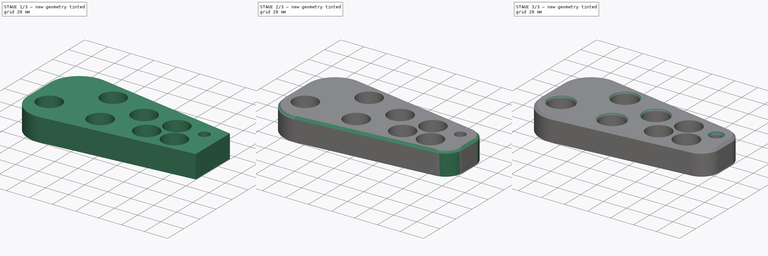
[diagram: build sequence overview — one tinted view per stage of 3, left to right]
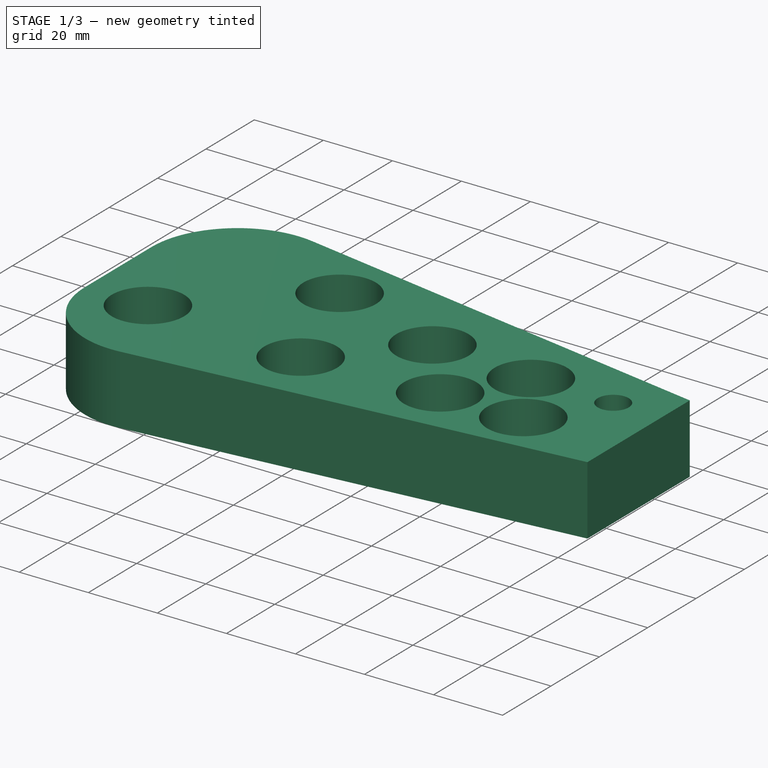
[diagram: stage 1 of 3 — iso view after this stage's code; geometry added in this stage tinted green]
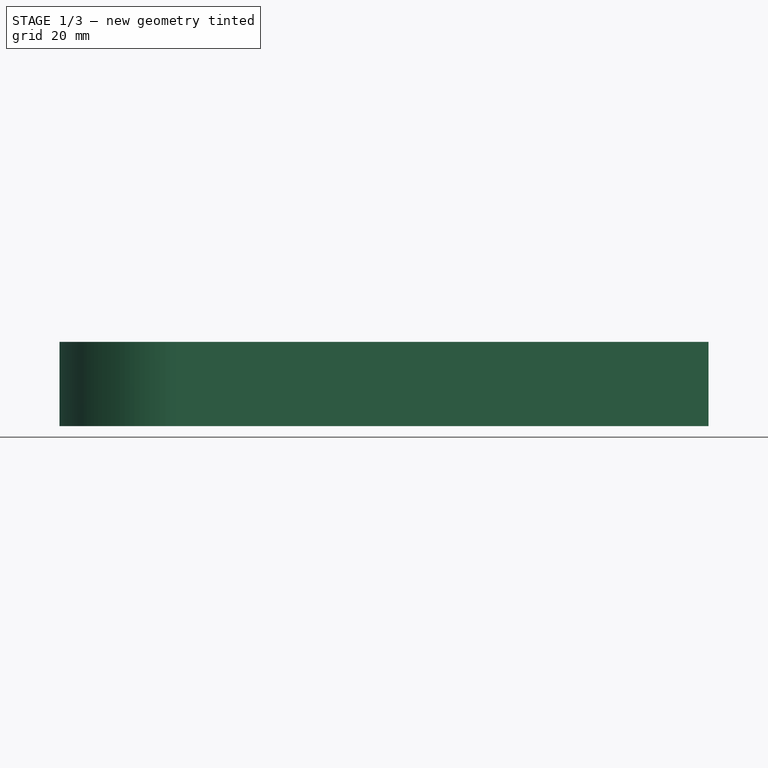
[diagram: stage 1 of 3 — front view after this stage's code; geometry added in this stage tinted green]
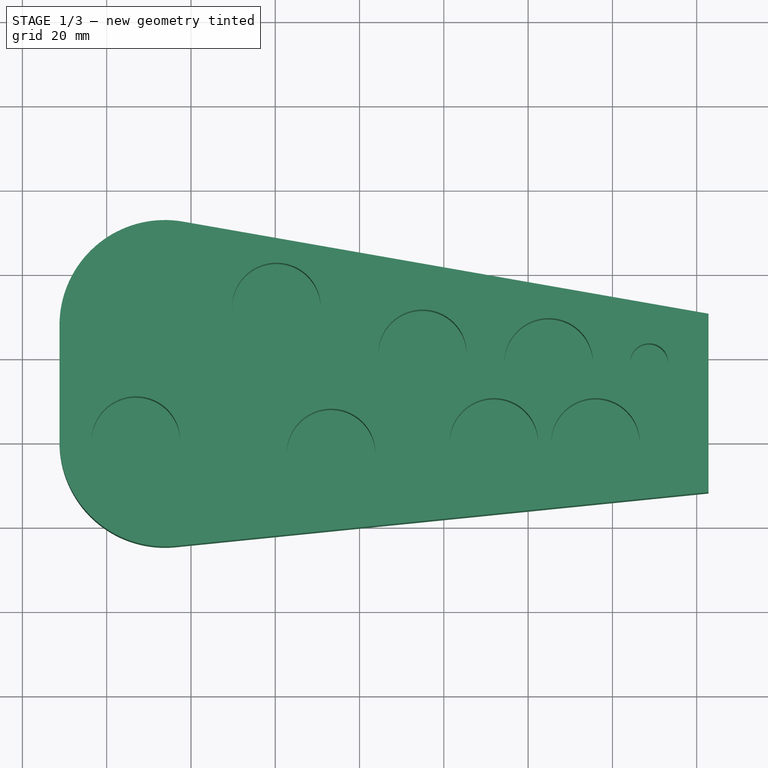
[diagram: stage 1 of 3 — top view after this stage's code; geometry added in this stage tinted green]
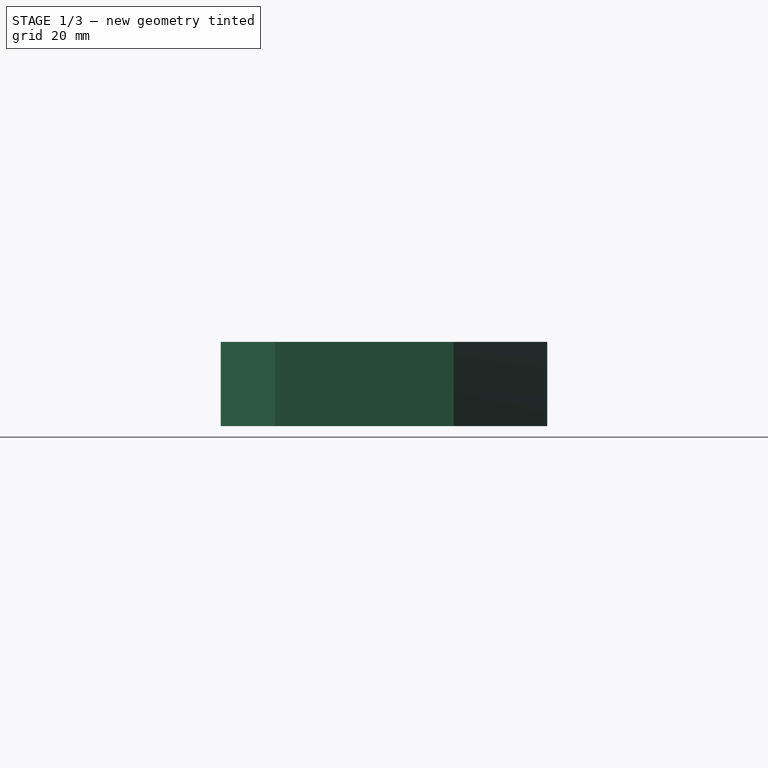
[diagram: stage 1 of 3 — right view after this stage's code; geometry added in this stage tinted green]
FCSTD DOCUMENT  (FreeCAD 0.16R)
Label: HoleSaw
License: All rights reserved
LicenseURL: http://en.wikipedia.org/wiki/All_rights_reserved
objects: PartDesign::Fillet×5, Sketcher::SketchObject×2, PartDesign::Pad×1, PartDesign::Pocket×1, PartDesign::Chamfer×1
note: 12 computed .brp shape members not serialized (recipe doc carries the construction recipe); baked Part::Feature solids carry a one-line shape summary decoded from their .brp

FEATURE [Sketcher::SketchObject] Sketch
  sketch-geometry (4):
    g0: LineSegment StartX=-91.2044 StartY=57.5204 StartZ=0 EndX=62.808 EndY=30.5336 EndZ=0
    g1: LineSegment StartX=62.808 StartY=30.5336 StartZ=0 EndX=62.808 EndY=-11.8104 EndZ=0
    g2: LineSegment StartX=62.808 StartY=-11.8104 StartZ=0 EndX=-91.2044 EndY=-27.3615 EndZ=0
    g3: LineSegment StartX=-91.2044 StartY=-27.3615 StartZ=0 EndX=-91.2044 EndY=57.5204 EndZ=0
  constraints (6):
    c: Coincident(g0,g1)
    c: Coincident(g1,g2)
    c: Coincident(g2,g3)
    c: Coincident(g3,g0)
    c: Vertical(g1)
    c: Vertical(g3)
FEATURE [PartDesign::Pad] Pad
  Length = 20
  Length2 = 100
  Sketch = -> Sketch
  Type = 0
FEATURE [Sketcher::SketchObject] Sketch001
  Placement = pos=(0,0,20) rot=(0,0,1;0rad)
  Support = -> Pad [Face6]
  sketch-geometry (16):
    g0: Circle CenterX=-73.0594 CenterY=0.428389 CenterZ=0 NormalX=0 NormalY=0 NormalZ=1 Radius=10.5
    g1: Circle CenterX=-26.7504 CenterY=-2.51705 CenterZ=0 NormalX=0 NormalY=0 NormalZ=1 Radius=10.5
    g2: Circle CenterX=35.983 CenterY=0 CenterZ=0 NormalX=0 NormalY=0 NormalZ=1 Radius=10.5
    g3: Circle CenterX=-39.7294 CenterY=32.1319 CenterZ=0 NormalX=0 NormalY=0 NormalZ=1 Radius=10.5
    g4: Circle CenterX=-5.06485 CenterY=21.0146 CenterZ=0 NormalX=0 NormalY=0 NormalZ=1 Radius=10.5
    g5: Circle CenterX=11.8877 CenterY=0 CenterZ=0 NormalX=0 NormalY=0 NormalZ=1 Radius=10.5
    g6: Circle [constr] CenterX=-73.0594 CenterY=0.428389 CenterZ=0 NormalX=0 NormalY=0 NormalZ=1 Radius=26
    g7: Circle [constr] CenterX=-5.06485 CenterY=21.0146 CenterZ=0 NormalX=0 NormalY=0 NormalZ=1 Radius=15
    g8: Circle [constr] CenterX=-26.7504 CenterY=-2.51705 CenterZ=0 NormalX=0 NormalY=0 NormalZ=1 Radius=17
    g9: Circle [constr] CenterX=-39.7294 CenterY=32.1319 CenterZ=0 NormalX=0 NormalY=0 NormalZ=1 Radius=20
    g10: Circle [constr] CenterX=11.8877 CenterY=0 CenterZ=0 NormalX=0 NormalY=0 NormalZ=1 Radius=12
    g11: Circle [constr] CenterX=35.983 CenterY=0 CenterZ=0 NormalX=0 NormalY=0 NormalZ=1 Radius=11
    g12: Circle [constr] CenterX=48.706 CenterY=19.0164 CenterZ=0 NormalX=0 NormalY=0 NormalZ=1 Radius=9
    g13: Circle CenterX=48.706 CenterY=19.0164 CenterZ=0 NormalX=0 NormalY=0 NormalZ=1 Radius=4.5
    g14: Circle CenterX=24.8691 CenterY=18.9864 CenterZ=0 NormalX=0 NormalY=0 NormalZ=1 Radius=10.5
    g15: Circle [constr] CenterX=24.8691 CenterY=18.9864 CenterZ=0 NormalX=0 NormalY=0 NormalZ=1 Radius=11
  constraints (32):
    c: Coincident(g0,g6)
    c: Coincident(g9,g3)
    c: Coincident(g8,g1)
    c: Coincident(g4,g7)
    c: Coincident(g5,g10)
    c: Coincident(g11,g2)
    c: PointOnObject(g2,g-1)
    c: PointOnObject(g5,g-1)
    c: Radius(g6) = 26
    c: Radius(g9) = 20
    c: Radius(g8) = 17
    c: Radius(g7) = 15
    c: Radius(g10) = 12
    c: Radius(g11) = 11
    c: Coincident(g13,g12)
    c: Radius(g12) = 9
    c: Coincident(g15,g14)
    c: Radius(g15) = 11
    c: Radius(g0) = 10.5
    c: Equal(g0,g3)
    c: Equal(g0,g1)
    c: Equal(g0,g4)
    c: Equal(g0,g5)
    c: Equal(g0,g2)
    c: Equal(g0,g14)
    c: Tangent(g6,g9)
    c: Tangent(g8,g9)
    c: Tangent(g7,g8)
    c: Tangent(g10,g7)
    c: Tangent(g15,g10)
    c: Tangent(g11,g15)
    c: Radius(g13) = 4.5
FEATURE [PartDesign::Pocket] Pocket
  Length = 19.5
  Sketch = -> Sketch001
  Type = 0
FEATURE [PartDesign::Fillet] Fillet
  Base = -> Pocket [Edge5,Edge1]
  Radius = 25
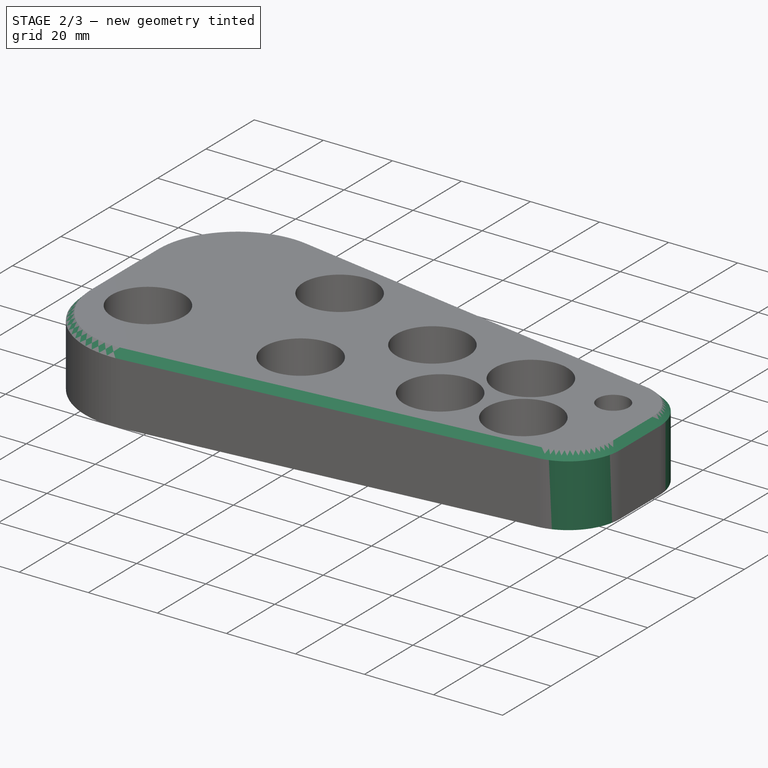
[diagram: stage 2 of 3 — iso view after this stage's code; geometry added in this stage tinted green]
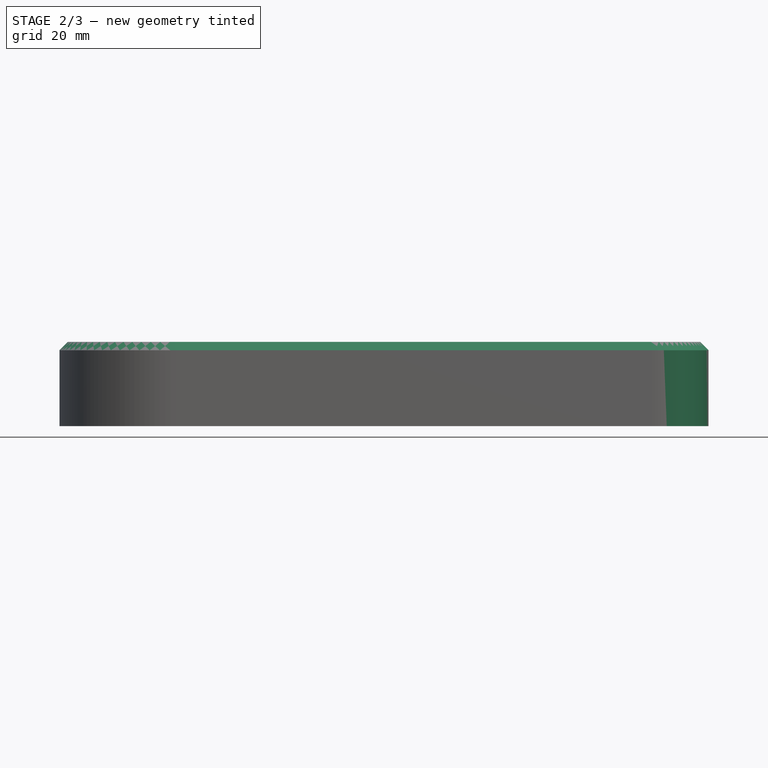
[diagram: stage 2 of 3 — front view after this stage's code; geometry added in this stage tinted green]
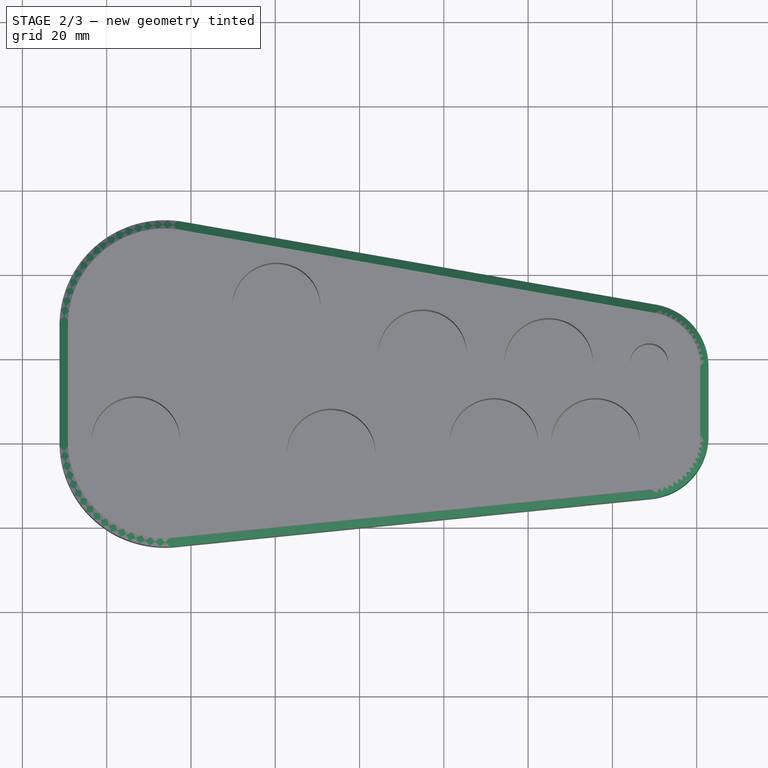
[diagram: stage 2 of 3 — top view after this stage's code; geometry added in this stage tinted green]
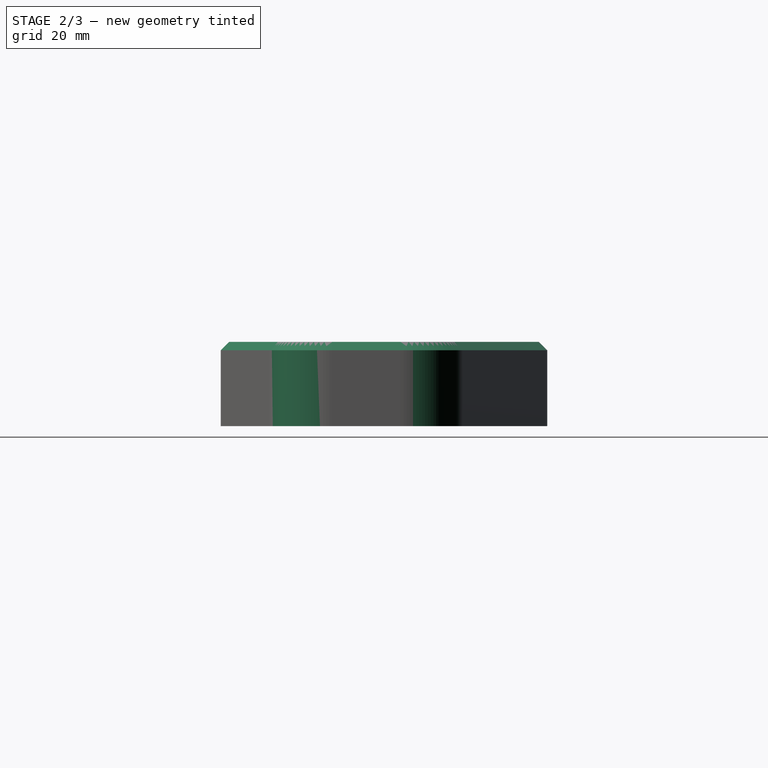
[diagram: stage 2 of 3 — right view after this stage's code; geometry added in this stage tinted green]
FEATURE [PartDesign::Fillet] Fillet001
  Base = -> Fillet [Edge12,Edge3]
  Radius = 15
FEATURE [PartDesign::Chamfer] Chamfer
  Base = -> Fillet001 [Edge20]
  Size = 2
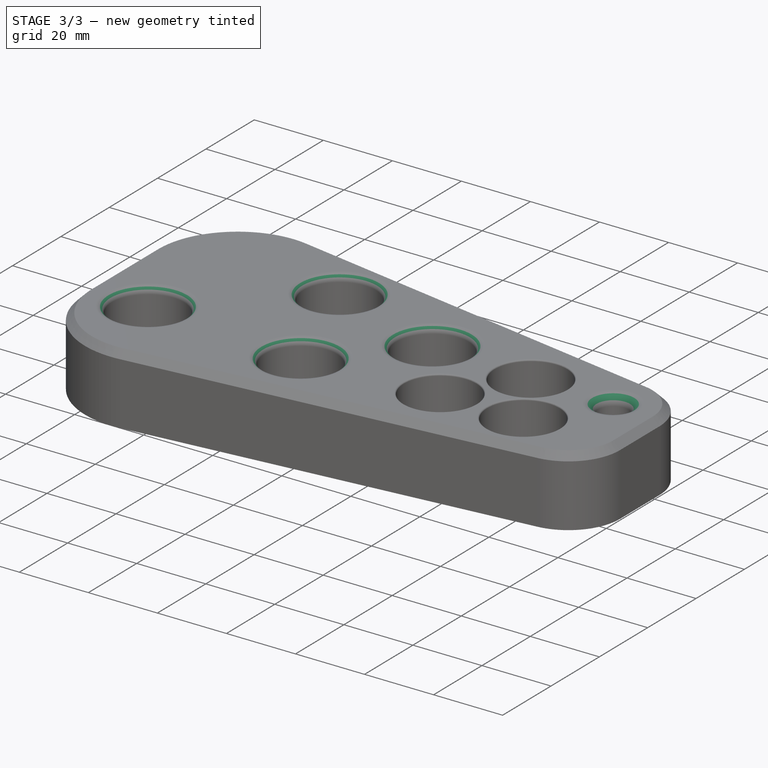
[diagram: stage 3 of 3 — iso view after this stage's code; geometry added in this stage tinted green]
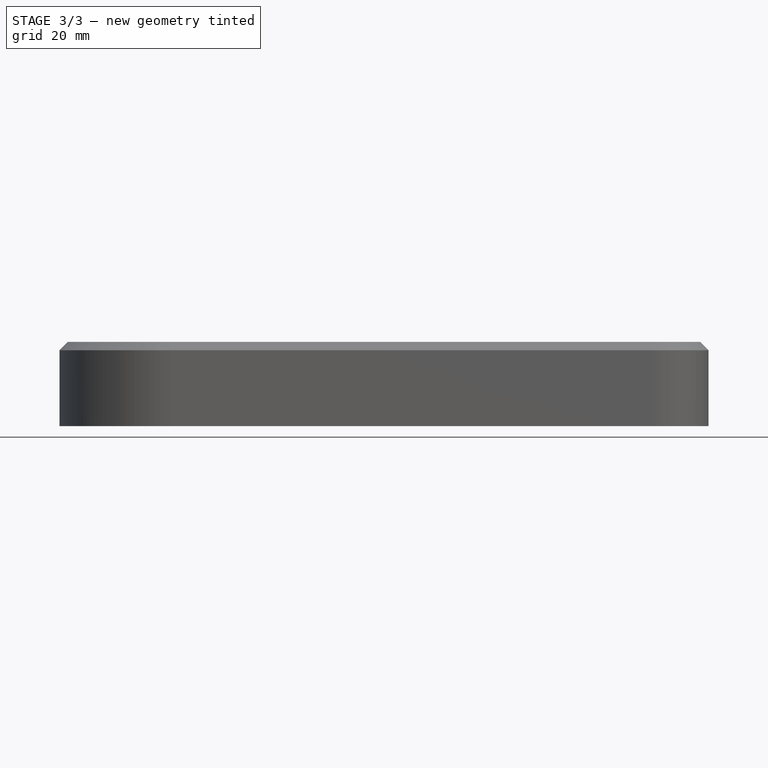
[diagram: stage 3 of 3 — front view after this stage's code; geometry added in this stage tinted green]
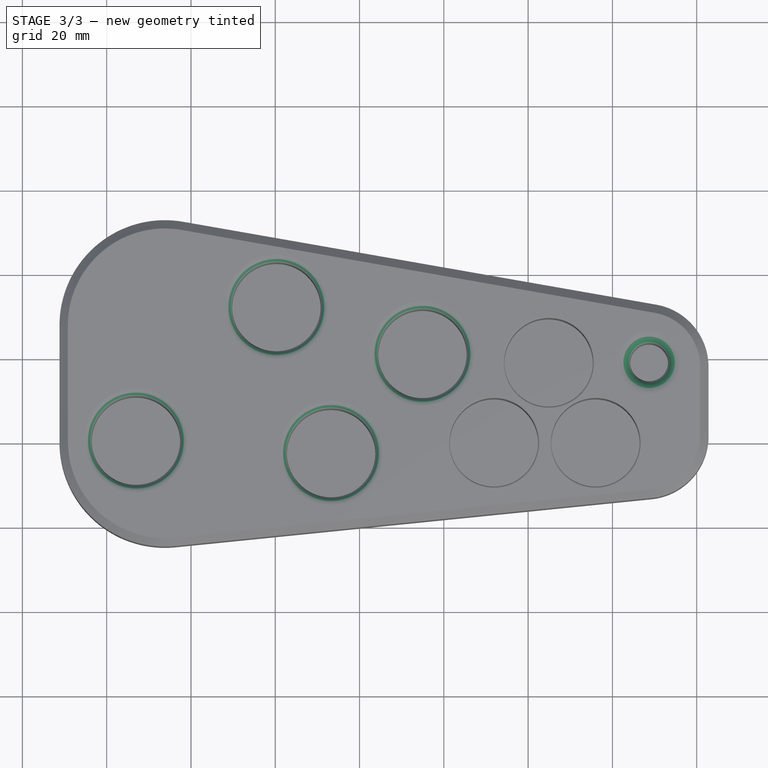
[diagram: stage 3 of 3 — top view after this stage's code; geometry added in this stage tinted green]
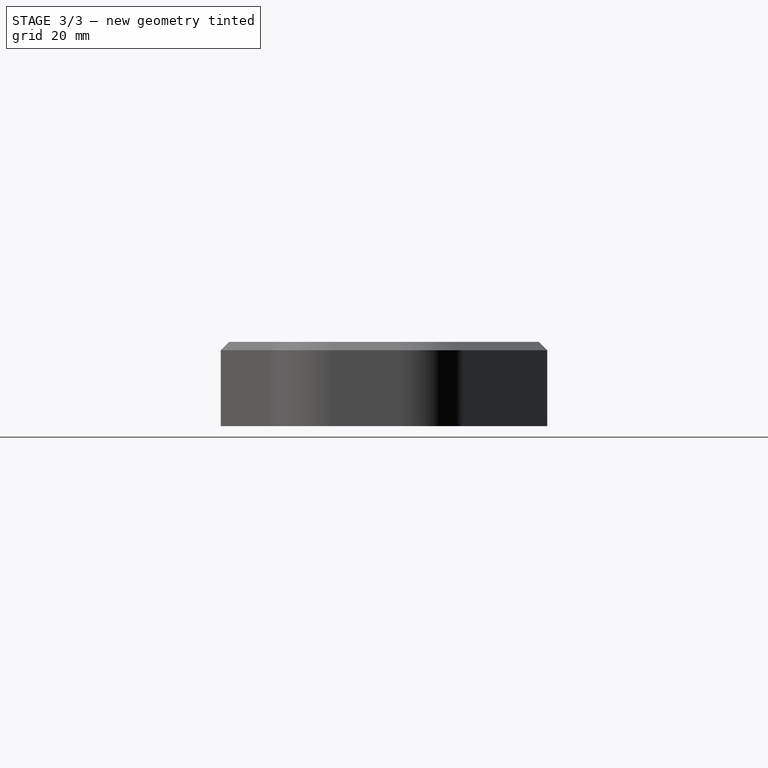
[diagram: stage 3 of 3 — right view after this stage's code; geometry added in this stage tinted green]
FEATURE [PartDesign::Fillet] Fillet002
  Base = -> Chamfer [Edge37,Edge31,Edge30,Edge36]
  Radius = 2
FEATURE [PartDesign::Fillet] Fillet003
  Base = -> Fillet002 [Edge10,Edge12,Edge11]
  Radius = 0.4
FEATURE [PartDesign::Fillet] Fillet004
  Base = -> Fillet003 [Edge11]
  Radius = 3
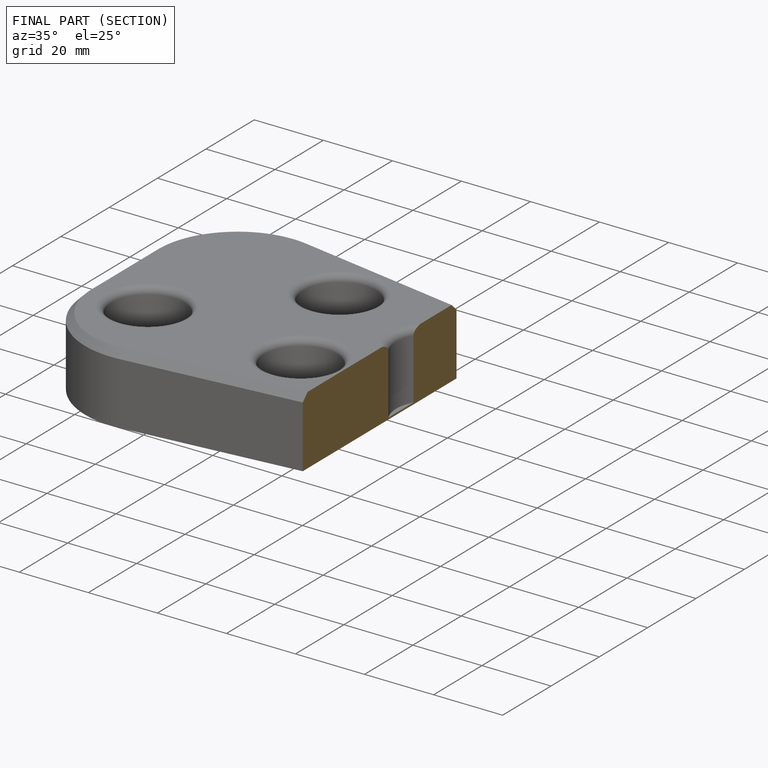
[diagram: finished part — half-section view (interior)]
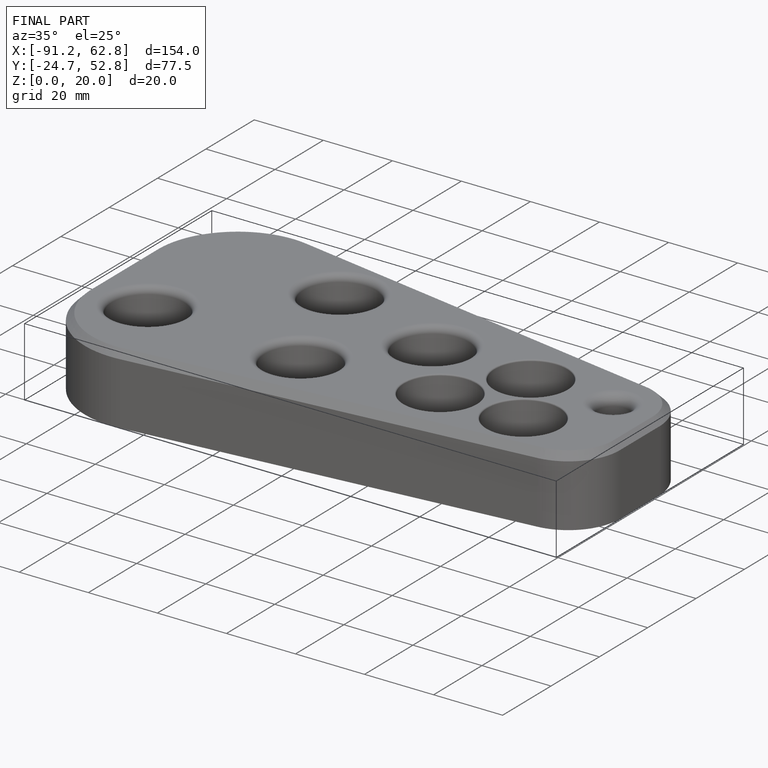
[diagram: finished part — iso view with bounding-box wireframe]
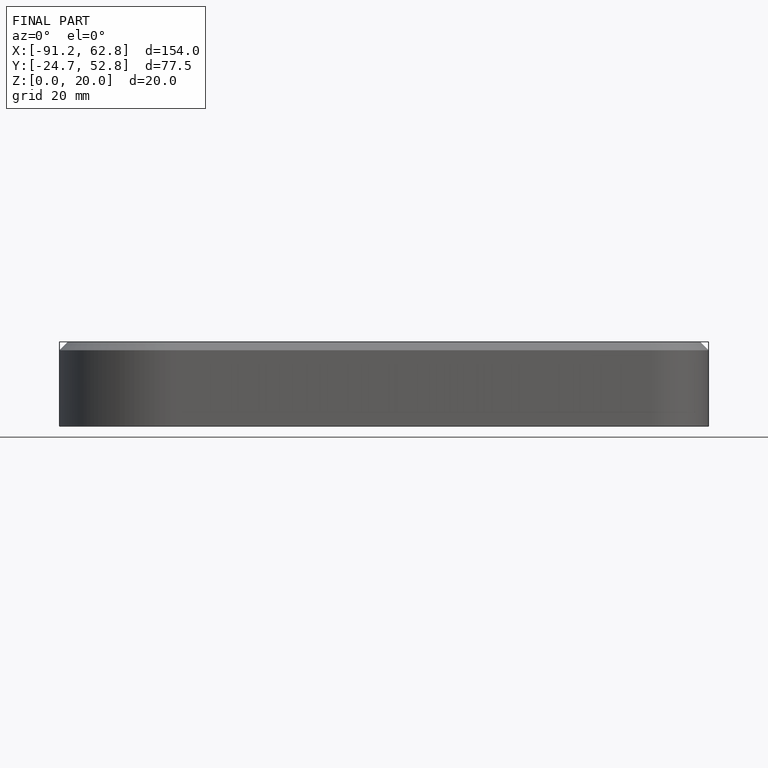
[diagram: finished part — front view with bounding-box wireframe]
